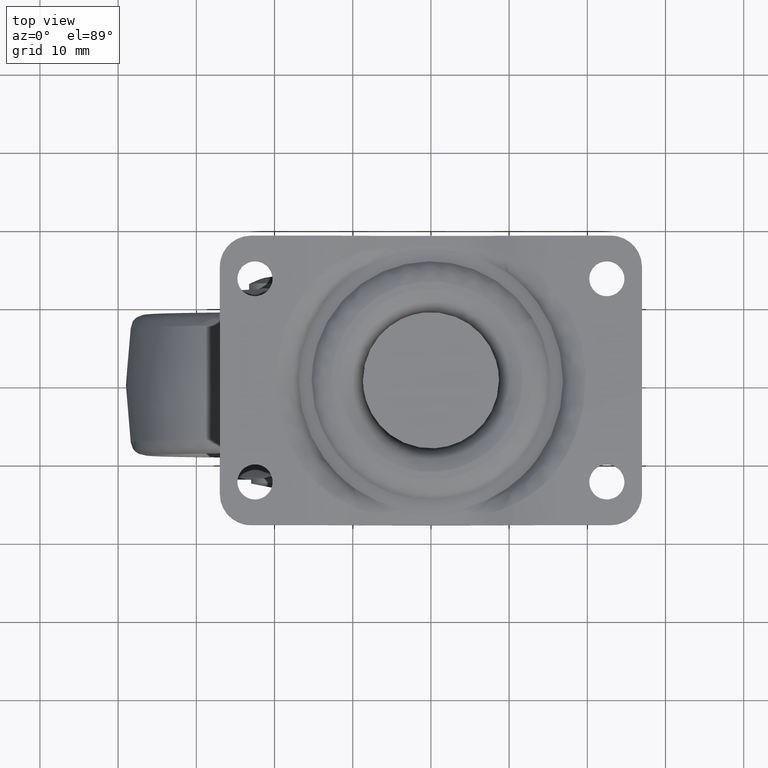
[diagram: clean part render]
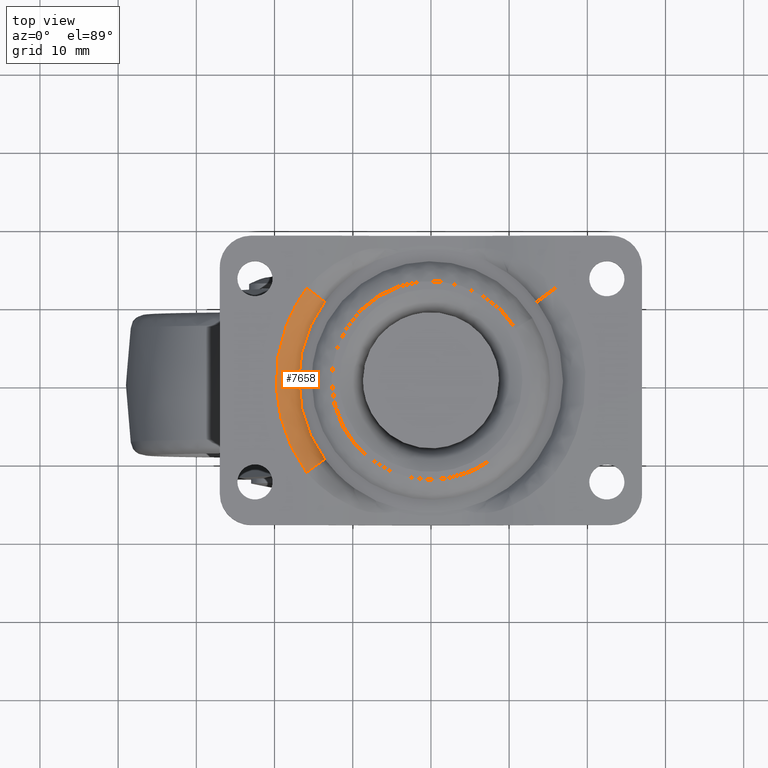
[diagram: same view with one face highlighted and labeled with its STEP entity id]
A machine part, top view. The second image highlights one B-rep face of the part: STEP entity #7658.
In plain terms, the highlighted face is a freeform B-spline surface patch.
Its self-contained STEP definition (entity closure, byte-faithful):
#7478=CARTESIAN_POINT('',(-13.575947300354940,-10.064971678946000,-2.170020999999855));
#7479=VERTEX_POINT('',#7478);
#7480=CARTESIAN_POINT('',(-15.891814243022949,-11.781915231721200,0.0));
#7481=VERTEX_POINT('',#7480);
#7482=CARTESIAN_POINT('',(-13.575947300354960,-10.064971678946000,-2.170020999999860));
#7483=CARTESIAN_POINT('',(-14.077809302524926,-10.437043456099090,0.0));
#7484=CARTESIAN_POINT('',(-15.891814243022949,-11.781915231721220,0.0));
#7492=(BOUNDED_CURVE()B_SPLINE_CURVE(2,(#7482,#7483,#7484),.UNSPECIFIED.,.F.,.U.)CURVE()GEOMETRIC_REPRESENTATION_ITEM()QUASI_UNIFORM_CURVE()RATIONAL_B_SPLINE_CURVE((1.0,0.798955463923588,1.0))REPRESENTATION_ITEM(''));
#7493=EDGE_CURVE('',#7479,#7481,#7492,.T.);
#7595=CARTESIAN_POINT('',(-12.926041826045186,-10.818337890720642,-2.342553297111478));
#7596=CARTESIAN_POINT('',(-21.980355303662176,1.299744E-015,-2.342553297111478));
#7597=CARTESIAN_POINT('',(-12.926041826045184,10.818337890720640,-2.342553297111477));
#7598=CARTESIAN_POINT('',(-13.354767881694253,-11.177156421171469,0.146519771336902));
#7599=CARTESIAN_POINT('',(-22.709391396684566,1.526516E-015,0.146519771336902));
#7600=CARTESIAN_POINT('',(-13.354767881694249,11.177156421171469,0.146519771336902));
#7601=CARTESIAN_POINT('',(-15.307622744394473,-12.811581254430092,-0.005318492345089));
#7602=CARTESIAN_POINT('',(-26.030163858687988,1.818816E-015,-0.005318492345089));
#7603=CARTESIAN_POINT('',(-15.307622744394470,12.811581254430090,-0.005318492345089));
#7611=(BOUNDED_SURFACE()B_SPLINE_SURFACE(2,2,((#7595,#7598,#7601),(#7596,#7599,#7602),(#7597,#7600,#7603)),.UNSPECIFIED.,.F.,.F.,.U.)B_SPLINE_SURFACE_WITH_KNOTS((3,3),(3,3),(0.0,29.004198900034680),(0.0,4.412352846652166),.UNSPECIFIED.)GEOMETRIC_REPRESENTATION_ITEM()RATIONAL_B_SPLINE_SURFACE(((0.851334705286289,0.647533181952297,0.848668657808147),(0.652853538503274,0.496566540176088,0.650809056445730),(0.851334705286289,0.647533181952297,0.848668657808147)))REPRESENTATION_ITEM('')SURFACE());
#7612=CARTESIAN_POINT('',(-13.575947300354940,10.064971678946000,-2.170020999999855));
#7613=VERTEX_POINT('',#7612);
#7614=CARTESIAN_POINT('',(-15.891814243022949,11.781915231721220,0.0));
#7615=VERTEX_POINT('',#7614);
#7616=CARTESIAN_POINT('',(-13.575947300354960,10.064971678945980,-2.170020999999857));
#7617=CARTESIAN_POINT('',(-14.077809302524923,10.437043456099074,-4.336809E-016));
#7618=CARTESIAN_POINT('',(-15.891814243022949,11.781915231721200,0.0));
#7626=(BOUNDED_CURVE()B_SPLINE_CURVE(2,(#7616,#7617,#7618),.UNSPECIFIED.,.F.,.U.)CURVE()GEOMETRIC_REPRESENTATION_ITEM()QUASI_UNIFORM_CURVE()RATIONAL_B_SPLINE_CURVE((1.0,0.798955463923589,1.0))REPRESENTATION_ITEM(''));
#7627=EDGE_CURVE('',#7613,#7615,#7626,.T.);
#7628=ORIENTED_EDGE('',*,*,#7627,.T.);
#7629=CARTESIAN_POINT('',(-15.891814243022941,-11.781915231721211,0.0));
#7630=CARTESIAN_POINT('',(-24.626721686860456,3.469447E-015,0.0));
#7631=CARTESIAN_POINT('',(-15.891814243022941,11.781915231721211,0.0));
#7639=(BOUNDED_CURVE()B_SPLINE_CURVE(2,(#7629,#7630,#7631),.UNSPECIFIED.,.F.,.U.)CURVE()GEOMETRIC_REPRESENTATION_ITEM()QUASI_UNIFORM_CURVE()RATIONAL_B_SPLINE_CURVE((1.0,0.803310491145264,1.0))REPRESENTATION_ITEM(''));
#7640=EDGE_CURVE('',#7481,#7615,#7639,.T.);
#7641=ORIENTED_EDGE('',*,*,#7640,.F.);
#7642=ORIENTED_EDGE('',*,*,#7493,.F.);
#7643=CARTESIAN_POINT('',(-13.575947300354949,10.064971678946010,-2.170020999999855));
#7644=CARTESIAN_POINT('',(-21.037942596649039,5.204170E-015,-2.170020999999855));
#7645=CARTESIAN_POINT('',(-13.575947300354949,-10.064971678946000,-2.170020999999855));
#7653=(BOUNDED_CURVE()B_SPLINE_CURVE(2,(#7643,#7644,#7645),.UNSPECIFIED.,.F.,.U.)CURVE()GEOMETRIC_REPRESENTATION_ITEM()QUASI_UNIFORM_CURVE()RATIONAL_B_SPLINE_CURVE((1.0,0.803310491145263,1.0))REPRESENTATION_ITEM(''));
#7654=EDGE_CURVE('',#7613,#7479,#7653,.T.);
#7655=ORIENTED_EDGE('',*,*,#7654,.F.);
#7656=EDGE_LOOP('',(#7628,#7641,#7642,#7655));
#7657=FACE_OUTER_BOUND('',#7656,.T.);
#7658=ADVANCED_FACE('',(#7657),#7611,.T.);